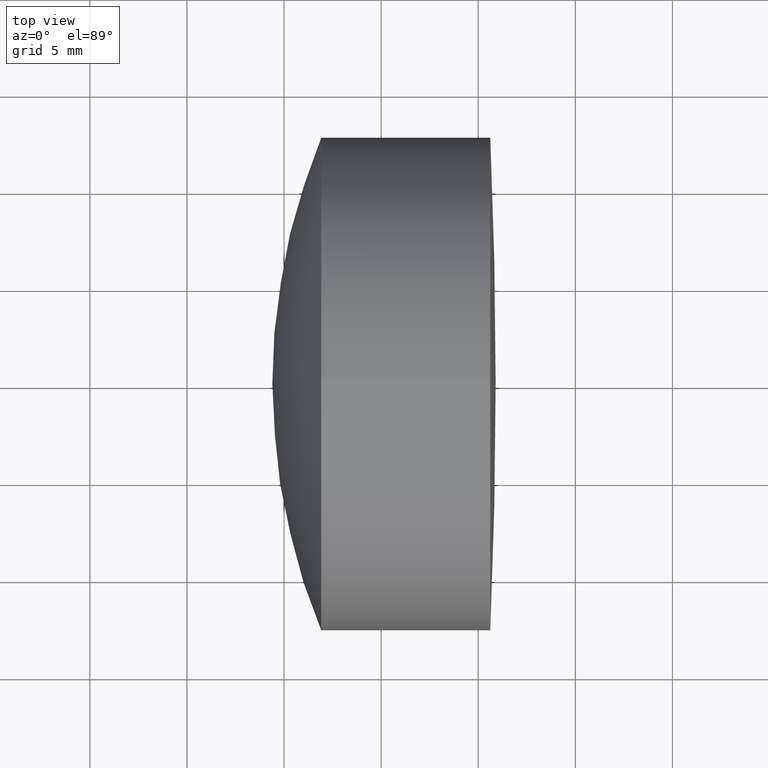
[diagram: clean part render]
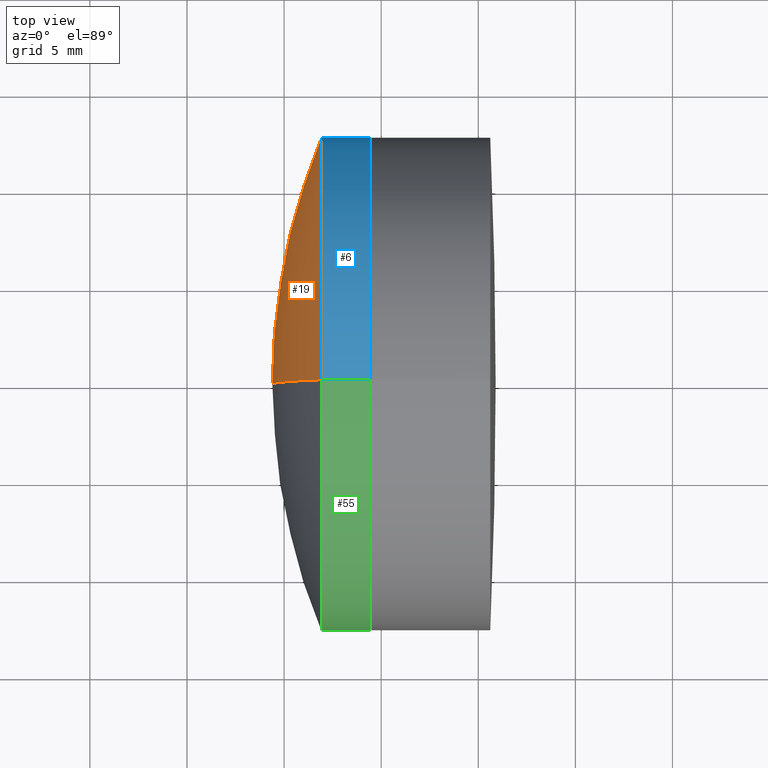
[diagram: same view with three faces highlighted in distinct colors, each labeled with its STEP entity id]
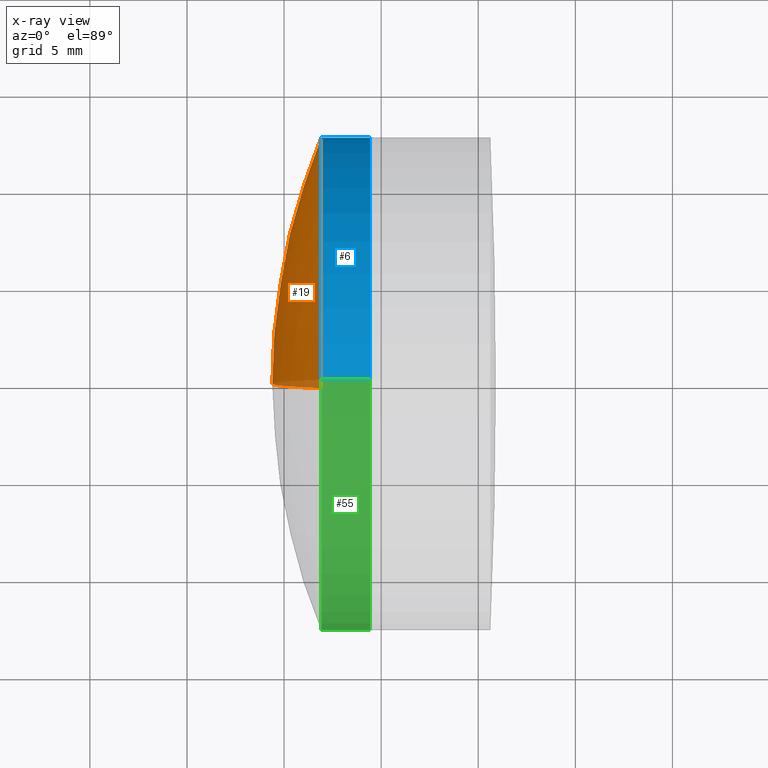
[diagram: x-ray of the same camera — body ghosted, the three highlighted faces saturated]
A machine part, top view with three faces highlighted in distinct colors.
The next image is the same camera in x-ray (body ghosted, the three faces saturated) — at least one of them is partly hidden behind the body in this view.
Their STEP definitions:

[orange] entity #19 — the highlighted spherical surface has radius 33.3 mm.
#19 = ADVANCED_FACE ( 'NONE', ( #147 ), #108, .T. ) ;
#28 = CARTESIAN_POINT ( 'NONE',  ( 226.9127335551075600, 1.555301434917138200E-015, -12.70000000000000100 ) ) ;
#45 = DIRECTION ( 'NONE',  ( 0.0000000000000000000, 0.0000000000000000000, 1.000000000000000000 ) ) ;
#47 = DIRECTION ( 'NONE',  ( -1.000000000000000000, -0.0000000000000000000, -0.0000000000000000000 ) ) ;
#48 = CARTESIAN_POINT ( 'NONE',  ( 226.9127335551075600, 0.0000000000000000000, 0.0000000000000000000 ) ) ;
#61 = AXIS2_PLACEMENT_3D ( 'NONE', #153, #83, #82 ) ;
#66 = ORIENTED_EDGE ( 'NONE', *, *, #168, .F. ) ;
#68 = VERTEX_POINT ( 'NONE', #210 ) ;
#82 = DIRECTION ( 'NONE',  ( 0.0000000000000000000, 0.0000000000000000000, -1.000000000000000000 ) ) ;
#83 = DIRECTION ( 'NONE',  ( 0.0000000000000000000, -1.000000000000000000, 0.0000000000000000000 ) ) ;
#87 = EDGE_CURVE ( 'NONE', #68, #105, #336, .T. ) ;
#103 = CARTESIAN_POINT ( 'NONE',  ( 224.3958458084194700, 0.0000000000000000000, -1.654376558981438700E-015 ) ) ;
#105 = VERTEX_POINT ( 'NONE', #28 ) ;
#108 = SPHERICAL_SURFACE ( 'NONE', #123, 33.29999999999996900 ) ;
#123 = AXIS2_PLACEMENT_3D ( 'NONE', #130, #205, #278 ) ;
#127 = EDGE_CURVE ( 'NONE', #105, #224, #344, .T. ) ;
#129 = EDGE_LOOP ( 'NONE', ( #247, #327, #66 ) ) ;
#130 = CARTESIAN_POINT ( 'NONE',  ( 257.6958458084194500, 0.0000000000000000000, -3.693413479561779400E-015 ) ) ;
#147 = FACE_OUTER_BOUND ( 'NONE', #129, .T. ) ;
#153 = CARTESIAN_POINT ( 'NONE',  ( 257.6958458084194500, 0.0000000000000000000, -3.693413479561779400E-015 ) ) ;
#168 = EDGE_CURVE ( 'NONE', #68, #224, #320, .T. ) ;
#196 = CARTESIAN_POINT ( 'NONE',  ( 257.6958458084194500, 0.0000000000000000000, -3.693413479561779400E-015 ) ) ;
#205 = DIRECTION ( 'NONE',  ( 0.0000000000000000000, 1.000000000000000000, 0.0000000000000000000 ) ) ;
#210 = CARTESIAN_POINT ( 'NONE',  ( 226.9127335551075600, 0.0000000000000000000, 12.69999999999999800 ) ) ;
#224 = VERTEX_POINT ( 'NONE', #103 ) ;
#230 = DIRECTION ( 'NONE',  ( 0.0000000000000000000, -1.224646799147353200E-016, 1.000000000000000000 ) ) ;
#231 = DIRECTION ( 'NONE',  ( -0.0000000000000000000, 1.000000000000000000, 1.224646799147353200E-016 ) ) ;
#242 = AXIS2_PLACEMENT_3D ( 'NONE', #196, #231, #230 ) ;
#247 = ORIENTED_EDGE ( 'NONE', *, *, #87, .T. ) ;
#278 = DIRECTION ( 'NONE',  ( 0.0000000000000000000, 0.0000000000000000000, 1.000000000000000000 ) ) ;
#320 = CIRCLE ( 'NONE', #61, 33.29999999999996900 ) ;
#327 = ORIENTED_EDGE ( 'NONE', *, *, #127, .T. ) ;
#336 = CIRCLE ( 'NONE', #337, 12.69999999999999600 ) ;
#337 = AXIS2_PLACEMENT_3D ( 'NONE', #48, #47, #45 ) ;
#344 = CIRCLE ( 'NONE', #242, 33.29999999999996900 ) ;

[blue] entity #6 — the highlighted cylindrical surface (partial cylindrical patch) has radius 12.7 mm, axis along (-1, -0, -0).
#2 = AXIS2_PLACEMENT_3D ( 'NONE', #161, #240, #300 ) ;
#6 = ADVANCED_FACE ( 'NONE', ( #219 ), #7, .T. ) ;
#7 = CYLINDRICAL_SURFACE ( 'NONE', #183, 12.69999999999999600 ) ;
#24 = VERTEX_POINT ( 'NONE', #341 ) ;
#27 = DIRECTION ( 'NONE',  ( -1.000000000000000000, -0.0000000000000000000, -0.0000000000000000000 ) ) ;
#28 = CARTESIAN_POINT ( 'NONE',  ( 226.9127335551075600, 1.555301434917138200E-015, -12.70000000000000100 ) ) ;
#36 = LINE ( 'NONE', #54, #207 ) ;
#45 = DIRECTION ( 'NONE',  ( 0.0000000000000000000, 0.0000000000000000000, 1.000000000000000000 ) ) ;
#47 = DIRECTION ( 'NONE',  ( -1.000000000000000000, -0.0000000000000000000, -0.0000000000000000000 ) ) ;
#48 = CARTESIAN_POINT ( 'NONE',  ( 226.9127335551075600, 0.0000000000000000000, 0.0000000000000000000 ) ) ;
#49 = ORIENTED_EDGE ( 'NONE', *, *, #87, .F. ) ;
#54 = CARTESIAN_POINT ( 'NONE',  ( -9.702612178336682500, 1.555301434917138000E-015, -12.69999999999999600 ) ) ;
#56 = DIRECTION ( 'NONE',  ( -1.000000000000000000, -0.0000000000000000000, -0.0000000000000000000 ) ) ;
#59 = CARTESIAN_POINT ( 'NONE',  ( 229.4261485882427700, 1.555301434917138000E-015, -12.69999999999999600 ) ) ;
#68 = VERTEX_POINT ( 'NONE', #210 ) ;
#73 = ORIENTED_EDGE ( 'NONE', *, *, #215, .F. ) ;
#87 = EDGE_CURVE ( 'NONE', #68, #105, #336, .T. ) ;
#89 = EDGE_CURVE ( 'NONE', #238, #105, #36, .T. ) ;
#105 = VERTEX_POINT ( 'NONE', #28 ) ;
#137 = DIRECTION ( 'NONE',  ( 0.0000000000000000000, 0.0000000000000000000, 1.000000000000000000 ) ) ;
#143 = ORIENTED_EDGE ( 'NONE', *, *, #89, .T. ) ;
#161 = CARTESIAN_POINT ( 'NONE',  ( 229.4261485882427700, 0.0000000000000000000, 0.0000000000000000000 ) ) ;
#176 = CIRCLE ( 'NONE', #2, 12.69999999999999600 ) ;
#183 = AXIS2_PLACEMENT_3D ( 'NONE', #259, #27, #137 ) ;
#206 = LINE ( 'NONE', #261, #331 ) ;
#207 = VECTOR ( 'NONE', #56, 1000.000000000000000 ) ;
#210 = CARTESIAN_POINT ( 'NONE',  ( 226.9127335551075600, 0.0000000000000000000, 12.69999999999999800 ) ) ;
#215 = EDGE_CURVE ( 'NONE', #24, #68, #206, .T. ) ;
#216 = EDGE_LOOP ( 'NONE', ( #271, #143, #49, #73 ) ) ;
#219 = FACE_OUTER_BOUND ( 'NONE', #216, .T. ) ;
#238 = VERTEX_POINT ( 'NONE', #59 ) ;
#240 = DIRECTION ( 'NONE',  ( -1.000000000000000000, -0.0000000000000000000, -0.0000000000000000000 ) ) ;
#259 = CARTESIAN_POINT ( 'NONE',  ( -9.702612178336682500, 0.0000000000000000000, 0.0000000000000000000 ) ) ;
#261 = CARTESIAN_POINT ( 'NONE',  ( -9.702612178336682500, 0.0000000000000000000, 12.69999999999999600 ) ) ;
#267 = EDGE_CURVE ( 'NONE', #24, #238, #176, .T. ) ;
#271 = ORIENTED_EDGE ( 'NONE', *, *, #267, .T. ) ;
#272 = DIRECTION ( 'NONE',  ( -1.000000000000000000, -0.0000000000000000000, -0.0000000000000000000 ) ) ;
#300 = DIRECTION ( 'NONE',  ( 0.0000000000000000000, 0.0000000000000000000, 1.000000000000000000 ) ) ;
#331 = VECTOR ( 'NONE', #272, 1000.000000000000000 ) ;
#336 = CIRCLE ( 'NONE', #337, 12.69999999999999600 ) ;
#337 = AXIS2_PLACEMENT_3D ( 'NONE', #48, #47, #45 ) ;
#341 = CARTESIAN_POINT ( 'NONE',  ( 229.4261485882427700, 0.0000000000000000000, 12.69999999999999600 ) ) ;

[green] entity #55 — the highlighted cylindrical surface (partial cylindrical patch) has radius 12.7 mm, axis along (-1, -0, -0).
#24 = VERTEX_POINT ( 'NONE', #341 ) ;
#28 = CARTESIAN_POINT ( 'NONE',  ( 226.9127335551075600, 1.555301434917138200E-015, -12.70000000000000100 ) ) ;
#34 = EDGE_LOOP ( 'NONE', ( #162, #117, #41, #193 ) ) ;
#36 = LINE ( 'NONE', #54, #207 ) ;
#41 = ORIENTED_EDGE ( 'NONE', *, *, #215, .T. ) ;
#54 = CARTESIAN_POINT ( 'NONE',  ( -9.702612178336682500, 1.555301434917138000E-015, -12.69999999999999600 ) ) ;
#55 = ADVANCED_FACE ( 'NONE', ( #270 ), #177, .T. ) ;
#56 = DIRECTION ( 'NONE',  ( -1.000000000000000000, -0.0000000000000000000, -0.0000000000000000000 ) ) ;
#57 = DIRECTION ( 'NONE',  ( -1.000000000000000000, -0.0000000000000000000, -0.0000000000000000000 ) ) ;
#59 = CARTESIAN_POINT ( 'NONE',  ( 229.4261485882427700, 1.555301434917138000E-015, -12.69999999999999600 ) ) ;
#68 = VERTEX_POINT ( 'NONE', #210 ) ;
#89 = EDGE_CURVE ( 'NONE', #238, #105, #36, .T. ) ;
#93 = DIRECTION ( 'NONE',  ( -1.000000000000000000, -0.0000000000000000000, -0.0000000000000000000 ) ) ;
#105 = VERTEX_POINT ( 'NONE', #28 ) ;
#107 = CIRCLE ( 'NONE', #325, 12.69999999999999600 ) ;
#117 = ORIENTED_EDGE ( 'NONE', *, *, #264, .T. ) ;
#124 = CARTESIAN_POINT ( 'NONE',  ( 226.9127335551075600, 0.0000000000000000000, 0.0000000000000000000 ) ) ;
#126 = DIRECTION ( 'NONE',  ( 0.0000000000000000000, 0.0000000000000000000, 1.000000000000000000 ) ) ;
#134 = AXIS2_PLACEMENT_3D ( 'NONE', #286, #57, #309 ) ;
#155 = DIRECTION ( 'NONE',  ( 0.0000000000000000000, 0.0000000000000000000, 1.000000000000000000 ) ) ;
#162 = ORIENTED_EDGE ( 'NONE', *, *, #89, .F. ) ;
#177 = CYLINDRICAL_SURFACE ( 'NONE', #134, 12.69999999999999600 ) ;
#193 = ORIENTED_EDGE ( 'NONE', *, *, #324, .F. ) ;
#197 = CARTESIAN_POINT ( 'NONE',  ( 229.4261485882427700, 0.0000000000000000000, 0.0000000000000000000 ) ) ;
#206 = LINE ( 'NONE', #261, #331 ) ;
#207 = VECTOR ( 'NONE', #56, 1000.000000000000000 ) ;
#210 = CARTESIAN_POINT ( 'NONE',  ( 226.9127335551075600, 0.0000000000000000000, 12.69999999999999800 ) ) ;
#215 = EDGE_CURVE ( 'NONE', #24, #68, #206, .T. ) ;
#238 = VERTEX_POINT ( 'NONE', #59 ) ;
#261 = CARTESIAN_POINT ( 'NONE',  ( -9.702612178336682500, 0.0000000000000000000, 12.69999999999999600 ) ) ;
#264 = EDGE_CURVE ( 'NONE', #238, #24, #107, .T. ) ;
#270 = FACE_OUTER_BOUND ( 'NONE', #34, .T. ) ;
#272 = DIRECTION ( 'NONE',  ( -1.000000000000000000, -0.0000000000000000000, -0.0000000000000000000 ) ) ;
#286 = CARTESIAN_POINT ( 'NONE',  ( -9.702612178336682500, 0.0000000000000000000, 0.0000000000000000000 ) ) ;
#291 = AXIS2_PLACEMENT_3D ( 'NONE', #124, #93, #155 ) ;
#302 = CIRCLE ( 'NONE', #291, 12.69999999999999600 ) ;
#309 = DIRECTION ( 'NONE',  ( 0.0000000000000000000, 0.0000000000000000000, 1.000000000000000000 ) ) ;
#314 = DIRECTION ( 'NONE',  ( -1.000000000000000000, -0.0000000000000000000, -0.0000000000000000000 ) ) ;
#324 = EDGE_CURVE ( 'NONE', #105, #68, #302, .T. ) ;
#325 = AXIS2_PLACEMENT_3D ( 'NONE', #197, #314, #126 ) ;
#331 = VECTOR ( 'NONE', #272, 1000.000000000000000 ) ;
#341 = CARTESIAN_POINT ( 'NONE',  ( 229.4261485882427700, 0.0000000000000000000, 12.69999999999999600 ) ) ;